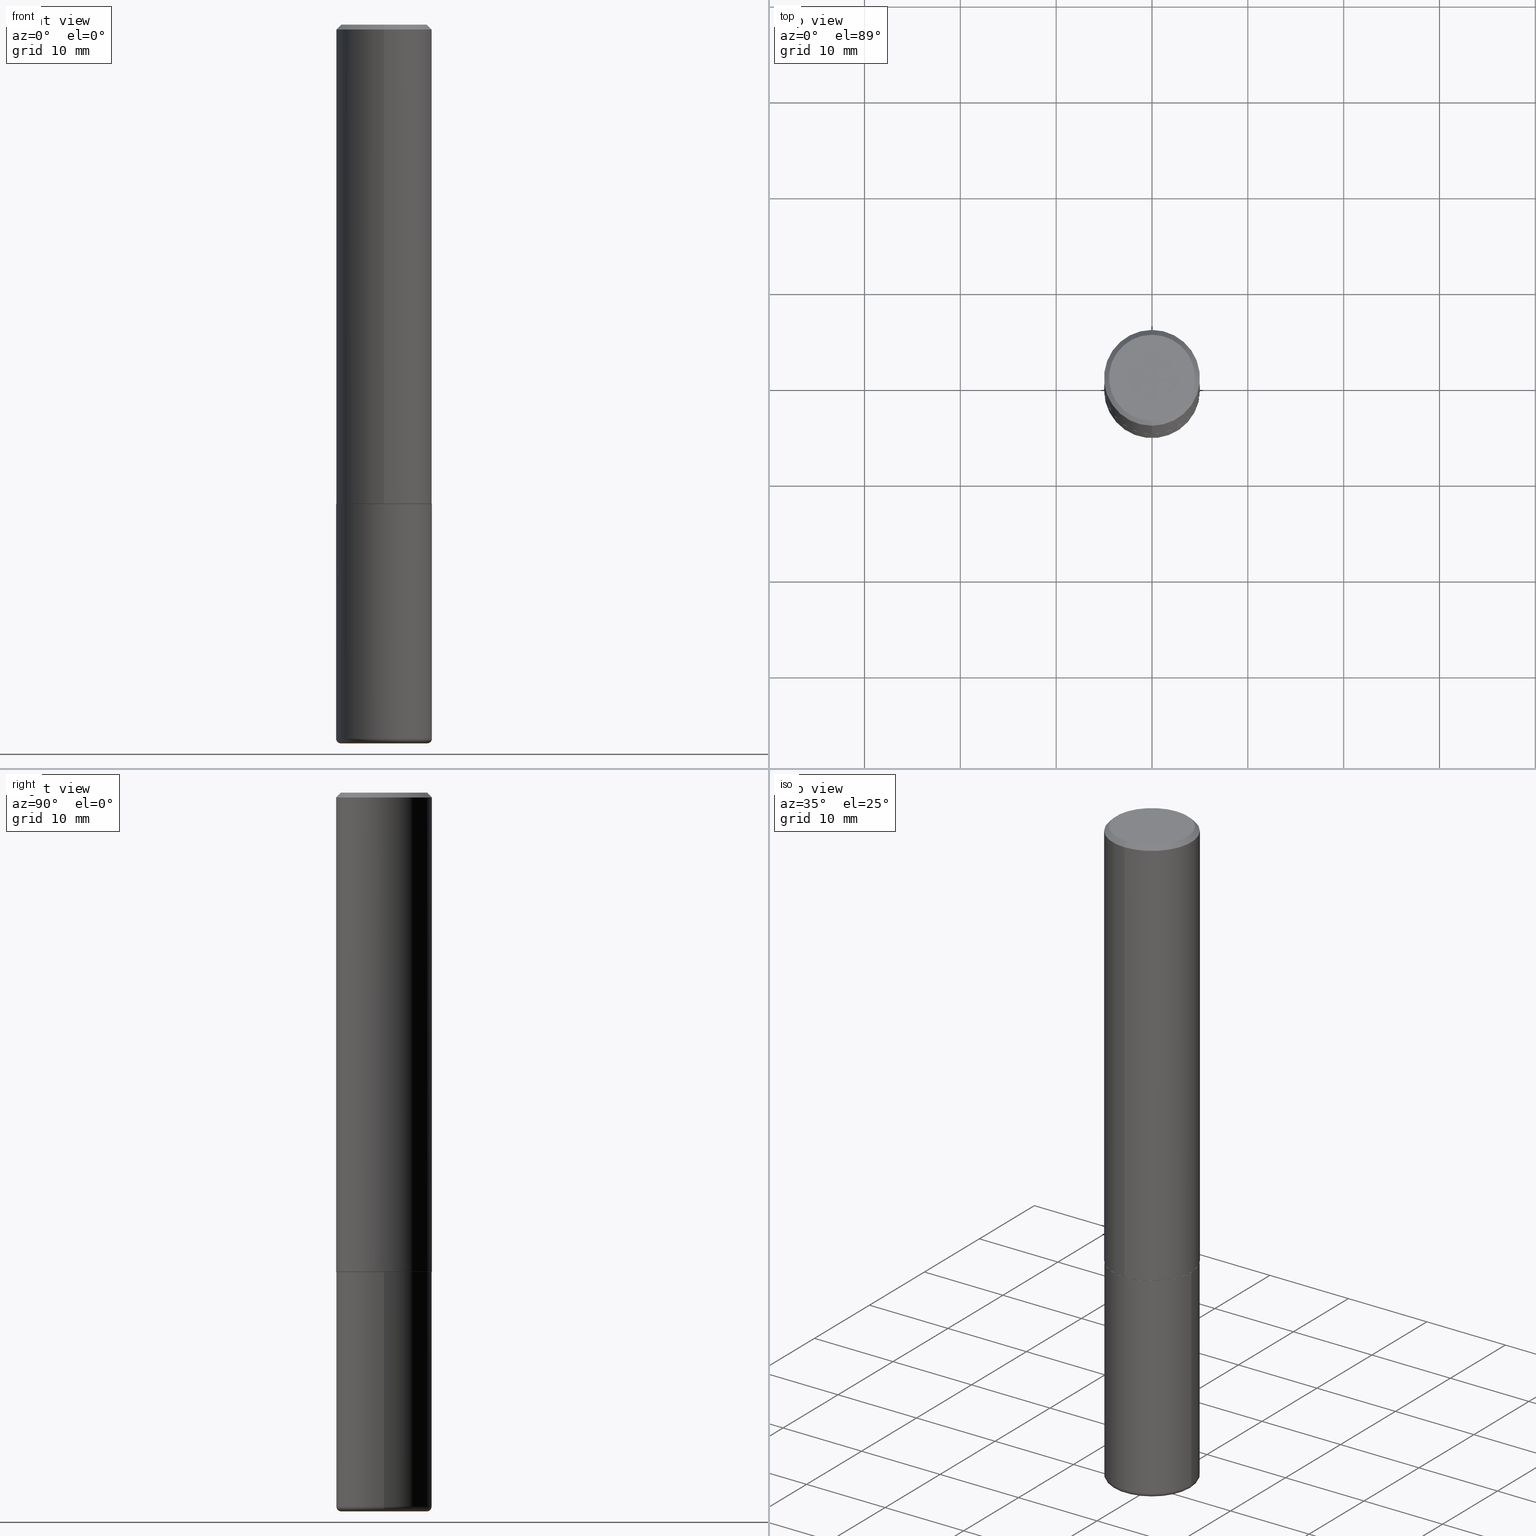
[diagram: canonical four-view strip — front | top / right | iso, engineering-drawing reading convention]
A machine part, canonical four-view strip (front | top / right | iso — engineering-drawing reading convention). The complete STEP part file that produces these views, byte-faithful:
ISO-10303-21;
HEADER;
FILE_DESCRIPTION (( 'STEP AP203' ),
    '1' );
FILE_NAME ('74403.STEP',
    '2024-03-06T15:11:34',
    ( '' ),
    ( '' ),
    'SwSTEP 2.0',
    'SolidWorks 2023',
    '' );
FILE_SCHEMA (( 'CONFIG_CONTROL_DESIGN' ));
ENDSEC;

DATA;
#1 = ORIENTED_EDGE ( 'NONE', *, *, #177, .T. ) ;
#2 = EDGE_CURVE ( 'NONE', #62, #22, #217, .T. ) ;
#3 = PERSON_AND_ORGANIZATION ( #415, #171 ) ;
#4 = LOCAL_TIME ( 10, 11, 34.00000000000000000, #319 ) ;
#5 = DIRECTION ( 'NONE',  ( -6.982962677686265922E-15, -1.000000000000000000, 4.184602492209747448E-15 ) ) ;
#6 = PERSON_AND_ORGANIZATION ( #415, #171 ) ;
#7 = DIRECTION ( 'NONE',  ( -6.982962677686265133E-15, -1.000000000000000000, 3.491137977679279029E-15 ) ) ;
#8 = DATE_AND_TIME ( #37, #182 ) ;
#9 = CARTESIAN_POINT ( 'NONE',  ( 0.000000000000000000, 0.000000000000000000, 0.000000000000000000 ) ) ;
#10 = AXIS2_PLACEMENT_3D ( 'NONE', #286, #34, #356 ) ;
#11 = CIRCLE ( 'NONE', #243, 0.1771500000000000019 ) ;
#12 = CC_DESIGN_PERSON_AND_ORGANIZATION_ASSIGNMENT ( #346, #315, ( #304 ) ) ;
#13 = DIRECTION ( 'NONE',  ( 1.000000000000000000, -6.982962677686272233E-15, 0.000000000000000000 ) ) ;
#14 = DIRECTION ( 'NONE',  ( -6.982962677686265922E-15, -1.000000000000000000, 4.184602492209747448E-15 ) ) ;
#15 = APPLICATION_CONTEXT ( 'configuration controlled 3d designs of mechanical parts and assemblies' ) ;
#16 = CARTESIAN_POINT ( 'NONE',  ( -1.367613240424807079E-15, -0.1958500000000068797, -1.968499999999999028 ) ) ;
#17 = CIRCLE ( 'NONE', #141, 0.1968500000000000250 ) ;
#18 = CARTESIAN_POINT ( 'NONE',  ( -0.1968500000000000250, -7.158219089893024104E-15, -1.968499999999999694 ) ) ;
#19 = LINE ( 'NONE', #75, #338 ) ;
#20 = LINE ( 'NONE', #204, #395 ) ;
#21 = CALENDAR_DATE ( 2024, 6, 3 ) ;
#22 = VERTEX_POINT ( 'NONE', #365 ) ;
#23 = MECHANICAL_CONTEXT ( 'NONE', #264, 'mechanical' ) ;
#24 = EDGE_LOOP ( 'NONE', ( #275, #383, #377, #260 ) ) ;
#25 = DIRECTION ( 'NONE',  ( 0.000000000000000000, 0.000000000000000000, 1.000000000000000000 ) ) ;
#26 = ORIENTED_EDGE ( 'NONE', *, *, #375, .T. ) ;
#27 = FACE_OUTER_BOUND ( 'NONE', #282, .T. ) ;
#28 = CIRCLE ( 'NONE', #121, 0.1968500000000002470 ) ;
#29 = EDGE_LOOP ( 'NONE', ( #340, #55 ) ) ;
#30 = CARTESIAN_POINT ( 'NONE',  ( -1.367613240424807079E-15, -0.1958500000000068797, -1.968499999999999028 ) ) ;
#31 = CONICAL_SURFACE ( 'NONE', #63, 0.1968500000000000527, 0.7853981633974466137 ) ;
#32 = ORIENTED_EDGE ( 'NONE', *, *, #361, .T. ) ;
#33 = DATE_AND_TIME ( #391, #4 ) ;
#34 = DIRECTION ( 'NONE',  ( 2.438088387897960049E-29, -3.491481338843145188E-15, -1.000000000000000000 ) ) ;
#35 = CARTESIAN_POINT ( 'NONE',  ( 7.172804555421624566E-29, -1.024086391496083050E-14, -2.933100000000000041 ) ) ;
#36 = AXIS2_PLACEMENT_3D ( 'NONE', #103, #40, #227 ) ;
#37 = CALENDAR_DATE ( 2024, 6, 3 ) ;
#38 = CARTESIAN_POINT ( 'NONE',  ( 0.1771500000000000019, -1.154667793568816250E-14, -2.952799999999999869 ) ) ;
#39 = CALENDAR_DATE ( 2024, 6, 3 ) ;
#40 = DIRECTION ( 'NONE',  ( -6.982962677686266711E-15, -1.000000000000000000, 3.491481338843145583E-15 ) ) ;
#41 = DIRECTION ( 'NONE',  ( -2.445468806185136597E-29, 3.491481338843145583E-15, 1.000000000000000000 ) ) ;
#42 = AXIS2_PLACEMENT_3D ( 'NONE', #136, #41, #169 ) ;
#43 = VECTOR ( 'NONE', #197, 39.37007874015748854 ) ;
#44 = FACE_OUTER_BOUND ( 'NONE', #278, .T. ) ;
#45 = DIRECTION ( 'NONE',  ( -6.982962677686265922E-15, -1.000000000000000000, 3.491767699944464940E-15 ) ) ;
#46 = DIRECTION ( 'NONE',  ( 4.937700262164538576E-15, 0.7071067811865437980, -0.7071067811865511255 ) ) ;
#47 = AXIS2_PLACEMENT_3D ( 'NONE', #357, #392, #7 ) ;
#48 = CIRCLE ( 'NONE', #212, 0.1958499999999999963 ) ;
#49 = DIRECTION ( 'NONE',  ( 1.000000000000000000, -6.982962677686272233E-15, 0.000000000000000000 ) ) ;
#50 = VECTOR ( 'NONE', #155, 39.37007874015748143 ) ;
#51 = CARTESIAN_POINT ( 'NONE',  ( 4.813511714092851266E-29, -6.873544717340677315E-15, -1.968499999999999694 ) ) ;
#52 = ORIENTED_EDGE ( 'NONE', *, *, #358, .F. ) ;
#53 = ADVANCED_FACE ( 'NONE', ( #294 ), #229, .T. ) ;
#54 = CONICAL_SURFACE ( 'NONE', #101, 0.1958499999999999963, 0.7853981633975336552 ) ;
#55 = ORIENTED_EDGE ( 'NONE', *, *, #215, .F. ) ;
#56 = DIRECTION ( 'NONE',  ( -6.982962677686265922E-15, -1.000000000000000000, 3.491767699944464940E-15 ) ) ;
#57 = EDGE_LOOP ( 'NONE', ( #162, #283, #1, #94 ) ) ;
#58 = EDGE_LOOP ( 'NONE', ( #123, #251, #32, #225 ) ) ;
#59 = ORIENTED_EDGE ( 'NONE', *, *, #114, .F. ) ;
#60 = DIRECTION ( 'NONE',  ( 1.000000000000000000, 0.000000000000000000, 0.000000000000000000 ) ) ;
#61 = CIRCLE ( 'NONE', #353, 0.1968499999999999694 ) ;
#62 = VERTEX_POINT ( 'NONE', #38 ) ;
#63 = AXIS2_PLACEMENT_3D ( 'NONE', #409, #115, #224 ) ;
#64 = CARTESIAN_POINT ( 'NONE',  ( 7.220980290903470182E-29, -1.030964609733603853E-14, -2.952799999999999869 ) ) ;
#65 = APPROVAL_STATUS ( 'not_yet_approved' ) ;
#66 = CARTESIAN_POINT ( 'NONE',  ( 1.234936949548815012E-15, 0.1768499999999998407, -5.065124715121833152E-16 ) ) ;
#67 = PLANE ( 'NONE',  #274 ) ;
#68 = CIRCLE ( 'NONE', #413, 0.1771500000000000019 ) ;
#69 = EDGE_CURVE ( 'NONE', #86, #308, #112, .T. ) ;
#70 = COORDINATED_UNIVERSAL_TIME_OFFSET ( 5, 0, .BEHIND. ) ;
#71 = ADVANCED_FACE ( 'NONE', ( #135 ), #95, .T. ) ;
#72 = FACE_OUTER_BOUND ( 'NONE', #24, .T. ) ;
#73 = CARTESIAN_POINT ( 'NONE',  ( 1.304766576325678705E-15, 0.1768499999999998407, -3.955058252891884244E-16 ) ) ;
#74 = CARTESIAN_POINT ( 'NONE',  ( 4.813905344975440714E-29, -6.872981015512730918E-15, -1.968499999999999694 ) ) ;
#75 = CARTESIAN_POINT ( 'NONE',  ( 0.1968499999999999694, -1.374596203102541411E-15, 9.598753983154298056E-30 ) ) ;
#76 = CARTESIAN_POINT ( 'NONE',  ( 4.813511714092851266E-29, -6.873544717340677315E-15, -1.968499999999999694 ) ) ;
#77 = DIRECTION ( 'NONE',  ( -6.982962677686265133E-15, -1.000000000000000000, 3.491137977679279029E-15 ) ) ;
#78 = AXIS2_PLACEMENT_3D ( 'NONE', #207, #335, #299 ) ;
#79 = CARTESIAN_POINT ( 'NONE',  ( -1.350489030861325626E-15, -0.1968500000000001082, -0.01999999999999935510 ) ) ;
#80 = APPLICATION_PROTOCOL_DEFINITION ( 'international standard', 'config_control_design', 1994, #15 ) ;
#81 = ADVANCED_FACE ( 'NONE', ( #97 ), #120, .T. ) ;
#82 = ORIENTED_EDGE ( 'NONE', *, *, #116, .F. ) ;
#83 = ADVANCED_FACE ( 'NONE', ( #72 ), #296, .T. ) ;
#84 = PRODUCT_DEFINITION_SHAPE ( 'NONE', 'NONE',  #303 ) ;
#85 = APPROVAL_DATE_TIME ( #279, #261 ) ;
#86 = VERTEX_POINT ( 'NONE', #396 ) ;
#87 = PRODUCT_DEFINITION_FORMATION_WITH_SPECIFIED_SOURCE ( 'ANY', '', #304, .NOT_KNOWN. ) ;
#88 = FACE_OUTER_BOUND ( 'NONE', #284, .T. ) ;
#89 = VERTEX_POINT ( 'NONE', #73 ) ;
#90 = ADVANCED_FACE ( 'NONE', ( #231 ), #67, .F. ) ;
#91 = ORIENTED_EDGE ( 'NONE', *, *, #69, .F. ) ;
#92 = AXIS2_PLACEMENT_3D ( 'NONE', #371, #240, #77 ) ;
#93 = APPROVAL ( #65, 'UNSPECIFIED' ) ;
#94 = ORIENTED_EDGE ( 'NONE', *, *, #110, .T. ) ;
#95 = CYLINDRICAL_SURFACE ( 'NONE', #42, 0.1968499999999999694 ) ;
#96 = TOROIDAL_SURFACE ( 'NONE', #330, 0.1771500000000000019, 0.01969999999999987733 ) ;
#97 = FACE_OUTER_BOUND ( 'NONE', #219, .T. ) ;
#98 = DATE_TIME_ROLE ( 'classification_date' ) ;
#99 = DIRECTION ( 'NONE',  ( 1.000000000000000000, -6.982962677686271444E-15, 4.883557194083114022E-29 ) ) ;
#100 = AXIS2_PLACEMENT_3D ( 'NONE', #257, #131, #5 ) ;
#101 = AXIS2_PLACEMENT_3D ( 'NONE', #416, #384, #244 ) ;
#102 = COORDINATED_UNIVERSAL_TIME_OFFSET ( 5, 0, .BEHIND. ) ;
#103 = CARTESIAN_POINT ( 'NONE',  ( 0.1771500000000000019, -1.147789575331295131E-14, -2.933100000000000041 ) ) ;
#104 = CARTESIAN_POINT ( 'NONE',  ( 4.813511714092851266E-29, -6.873544717340677315E-15, -1.968499999999999694 ) ) ;
#105 = DIRECTION ( 'NONE',  ( -6.982962677686265922E-15, -1.000000000000000000, 4.163344669033670112E-15 ) ) ;
#106 = CC_DESIGN_DATE_AND_TIME_ASSIGNMENT ( #255, #291, ( #303 ) ) ;
#107 = CC_DESIGN_SECURITY_CLASSIFICATION ( #202, ( #87 ) ) ;
#108 = CYLINDRICAL_SURFACE ( 'NONE', #78, 0.1968500000000001360 ) ;
#109 = CARTESIAN_POINT ( 'NONE',  ( -1.374596203102495065E-15, -0.1968500000000071026, -1.967499999999998916 ) ) ;
#110 = EDGE_CURVE ( 'NONE', #363, #180, #232, .T. ) ;
#111 = DIRECTION ( 'NONE',  ( 5.024295867788490741E-15, 0.7071067811866103003, 0.7071067811864847341 ) ) ;
#112 = CIRCLE ( 'NONE', #321, 0.1968500000000000250 ) ;
#113 = CIRCLE ( 'NONE', #332, 0.01969999999999989468 ) ;
#114 = EDGE_CURVE ( 'NONE', #348, #62, #68, .T. ) ;
#115 = DIRECTION ( 'NONE',  ( 2.445268841296851437E-29, -3.491767699944464545E-15, -1.000000000000000000 ) ) ;
#116 = EDGE_CURVE ( 'NONE', #117, #22, #61, .T. ) ;
#117 = VERTEX_POINT ( 'NONE', #164 ) ;
#118 = CARTESIAN_POINT ( 'NONE',  ( -0.1968499999999999694, 1.398703375343756999E-15, -9.682923725166782276E-30 ) ) ;
#119 = ORIENTED_EDGE ( 'NONE', *, *, #144, .T. ) ;
#120 = TOROIDAL_SURFACE ( 'NONE', #210, 0.1771500000000000019, 0.01969999999999987733 ) ;
#121 = AXIS2_PLACEMENT_3D ( 'NONE', #290, #265, #292 ) ;
#122 = CARTESIAN_POINT ( 'NONE',  ( 0.000000000000000000, 0.000000000000000000, 0.000000000000000000 ) ) ;
#123 = ORIENTED_EDGE ( 'NONE', *, *, #206, .F. ) ;
#124 =( NAMED_UNIT ( * ) PLANE_ANGLE_UNIT ( ) SI_UNIT ( $, .RADIAN. ) );
#125 = ORIENTED_EDGE ( 'NONE', *, *, #206, .T. ) ;
#126 = CC_DESIGN_PERSON_AND_ORGANIZATION_ASSIGNMENT ( #6, #285, ( #87 ) ) ;
#127 = ORIENTED_EDGE ( 'NONE', *, *, #69, .T. ) ;
#128 = DIRECTION ( 'NONE',  ( 2.445268841296850876E-29, -3.491767699944464940E-15, -1.000000000000000000 ) ) ;
#129 = AXIS2_PLACEMENT_3D ( 'NONE', #250, #161, #56 ) ;
#130 = EDGE_CURVE ( 'NONE', #348, #117, #113, .T. ) ;
#131 = DIRECTION ( 'NONE',  ( -2.445268841296851437E-29, 3.491767699944464545E-15, 1.000000000000000000 ) ) ;
#132 = PERSON_AND_ORGANIZATION ( #415, #171 ) ;
#133 = DIRECTION ( 'NONE',  ( -2.445468806185136597E-29, 3.491481338843145583E-15, 1.000000000000000000 ) ) ;
#134 = SHAPE_DEFINITION_REPRESENTATION ( #84, #266 ) ;
#135 = FACE_OUTER_BOUND ( 'NONE', #410, .T. ) ;
#136 = CARTESIAN_POINT ( 'NONE',  ( 0.000000000000000000, 0.000000000000000000, 0.000000000000000000 ) ) ;
#137 = DESIGN_CONTEXT ( 'detailed design', #15, 'design' ) ;
#138 = EDGE_CURVE ( 'NONE', #22, #117, #170, .T. ) ;
#139 = CARTESIAN_POINT ( 'NONE',  ( 4.890537682593712927E-31, -6.983535399888942699E-17, -0.02000000000000004205 ) ) ;
#140 = DIRECTION ( 'NONE',  ( -2.445268841296851437E-29, 3.491767699944464545E-15, 1.000000000000000000 ) ) ;
#141 = AXIS2_PLACEMENT_3D ( 'NONE', #74, #268, #341 ) ;
#142 = CC_DESIGN_APPROVAL ( #269, ( #87 ) ) ;
#143 = LINE ( 'NONE', #402, #249 ) ;
#144 = EDGE_CURVE ( 'NONE', #188, #414, #28, .T. ) ;
#145 = EDGE_CURVE ( 'NONE', #156, #180, #318, .T. ) ;
#146 = FACE_OUTER_BOUND ( 'NONE', #254, .T. ) ;
#147 = EDGE_CURVE ( 'NONE', #186, #216, #276, .T. ) ;
#148 = DIRECTION ( 'NONE',  ( -1.000000000000000000, 6.982962677686265922E-15, -4.876176775795935793E-29 ) ) ;
#149 = AXIS2_PLACEMENT_3D ( 'NONE', #104, #174, #214 ) ;
#150 = CC_DESIGN_APPROVAL ( #261, ( #303 ) ) ;
#151 = FACE_OUTER_BOUND ( 'NONE', #58, .T. ) ;
#152 = ORIENTED_EDGE ( 'NONE', *, *, #138, .F. ) ;
#153 = UNCERTAINTY_MEASURE_WITH_UNIT (LENGTH_MEASURE( 1.000000000000000082E-05 ), #349, 'distance_accuracy_value', 'NONE');
#154 = EDGE_CURVE ( 'NONE', #414, #188, #158, .T. ) ;
#155 = DIRECTION ( 'NONE',  ( -4.937700262164969294E-15, -0.7071067811866054154, 0.7071067811864896191 ) ) ;
#156 = VERTEX_POINT ( 'NONE', #267 ) ;
#157 = ORIENTED_EDGE ( 'NONE', *, *, #200, .F. ) ;
#158 = CIRCLE ( 'NONE', #300, 0.1968500000000002470 ) ;
#159 = DIRECTION ( 'NONE',  ( -2.445468806185136877E-29, 3.491481338843145188E-15, 1.000000000000000000 ) ) ;
#160 = ORIENTED_EDGE ( 'NONE', *, *, #2, .T. ) ;
#161 = DIRECTION ( 'NONE',  ( -2.445268841296851437E-29, 3.491767699944464545E-15, 1.000000000000000000 ) ) ;
#162 = ORIENTED_EDGE ( 'NONE', *, *, #145, .F. ) ;
#163 = DIRECTION ( 'NONE',  ( 6.982962677686265922E-15, 1.000000000000000000, -3.491767699944464940E-15 ) ) ;
#164 = CARTESIAN_POINT ( 'NONE',  ( -0.1968499999999999417, -8.842160539617071922E-15, -2.933100000000000041 ) ) ;
#165 = APPROVAL_DATE_TIME ( #33, #93 ) ;
#166 = DIRECTION ( 'NONE',  ( -2.445468806185136597E-29, 3.491481338843145583E-15, 1.000000000000000000 ) ) ;
#167 = DATE_AND_TIME ( #327, #368 ) ;
#168 = CARTESIAN_POINT ( 'NONE',  ( 7.172804555421624566E-29, -1.024086391496083050E-14, -2.933100000000000041 ) ) ;
#169 = DIRECTION ( 'NONE',  ( 1.000000000000000000, -6.982962677686266711E-15, 4.876176775795935793E-29 ) ) ;
#170 = CIRCLE ( 'NONE', #233, 0.1968499999999999694 ) ;
#171 = ORGANIZATION ( 'UNSPECIFIED', 'UNSPECIFIED', '' ) ;
#172 = CC_DESIGN_DATE_AND_TIME_ASSIGNMENT ( #8, #98, ( #202 ) ) ;
#173 = AXIS2_PLACEMENT_3D ( 'NONE', #122, #25, #60 ) ;
#174 = DIRECTION ( 'NONE',  ( -2.445268841296850876E-29, 3.491767699944464940E-15, 1.000000000000000000 ) ) ;
#175 = CARTESIAN_POINT ( 'NONE',  ( 1.395150661665005404E-15, 0.1958499999999931407, -1.968500000000000583 ) ) ;
#176 = CARTESIAN_POINT ( 'NONE',  ( 0.000000000000000000, 0.000000000000000000, 0.000000000000000000 ) ) ;
#177 = EDGE_CURVE ( 'NONE', #89, #363, #238, .T. ) ;
#178 = DIRECTION ( 'NONE',  ( 2.438088387897960049E-29, -3.491481338843145188E-15, -1.000000000000000000 ) ) ;
#179 = CARTESIAN_POINT ( 'NONE',  ( -0.1771500000000000019, -8.946540090277048352E-15, -2.952799999999999869 ) ) ;
#180 = VERTEX_POINT ( 'NONE', #79 ) ;
#181 = EDGE_CURVE ( 'NONE', #156, #89, #226, .T. ) ;
#182 = LOCAL_TIME ( 10, 11, 34.00000000000000000, #70 ) ;
#183 = COORDINATED_UNIVERSAL_TIME_OFFSET ( 5, 0, .BEHIND. ) ;
#184 = ORIENTED_EDGE ( 'NONE', *, *, #323, .F. ) ;
#185 = APPLICATION_PROTOCOL_DEFINITION ( 'international standard', 'config_control_design', 1994, #264 ) ;
#186 = VERTEX_POINT ( 'NONE', #16 ) ;
#187 = CC_DESIGN_PERSON_AND_ORGANIZATION_ASSIGNMENT ( #317, #191, ( #303 ) ) ;
#188 = VERTEX_POINT ( 'NONE', #109 ) ;
#189 = CONICAL_SURFACE ( 'NONE', #322, 0.1968500000000000527, 0.7853981633974466137 ) ;
#190 = ORIENTED_EDGE ( 'NONE', *, *, #192, .T. ) ;
#191 = PERSON_AND_ORGANIZATION_ROLE ( 'creator' ) ;
#192 = EDGE_CURVE ( 'NONE', #180, #363, #362, .T. ) ;
#193 = DIRECTION ( 'NONE',  ( 1.000000000000000000, -6.982962677686269866E-15, 0.000000000000000000 ) ) ;
#194 = ADVANCED_FACE ( 'NONE', ( #367 ), #333, .F. ) ;
#195 = CARTESIAN_POINT ( 'NONE',  ( -0.1771500000000000019, -8.982137458561812020E-15, -2.933100000000000041 ) ) ;
#196 = MANIFOLD_SOLID_BREP ( 'Body-Move/Copy2[1]', #400 ) ;
#197 = DIRECTION ( 'NONE',  ( -4.851104656540954809E-15, -0.7071067811865486830, -0.7071067811865462405 ) ) ;
#198 = DIRECTION ( 'NONE',  ( -1.000000000000000000, 7.105427357600965571E-15, 0.000000000000000000 ) ) ;
#199 = DIRECTION ( 'NONE',  ( -2.445468806185136597E-29, 3.491481338843145583E-15, 1.000000000000000000 ) ) ;
#200 = EDGE_CURVE ( 'NONE', #22, #86, #19, .T. ) ;
#201 = DIRECTION ( 'NONE',  ( -6.982962677686265922E-15, -1.000000000000000000, 3.491767699944464545E-15 ) ) ;
#202 = SECURITY_CLASSIFICATION ( '', '', #293 ) ;
#203 = VECTOR ( 'NONE', #159, 39.37007874015748143 ) ;
#204 = CARTESIAN_POINT ( 'NONE',  ( 1.391597947986204111E-15, 0.1958499999999931407, -1.968500000000000583 ) ) ;
#205 = ORIENTED_EDGE ( 'NONE', *, *, #358, .T. ) ;
#206 = EDGE_CURVE ( 'NONE', #216, #414, #20, .T. ) ;
#207 = CARTESIAN_POINT ( 'NONE',  ( 0.000000000000000000, 0.000000000000000000, 0.000000000000000000 ) ) ;
#208 = ADVANCED_FACE ( 'NONE', ( #237 ), #189, .T. ) ;
#209 = DIRECTION ( 'NONE',  ( -2.445268841296851437E-29, 3.491767699944464545E-15, 1.000000000000000000 ) ) ;
#210 = AXIS2_PLACEMENT_3D ( 'NONE', #168, #234, #99 ) ;
#211 = ORIENTED_EDGE ( 'NONE', *, *, #130, .T. ) ;
#212 = AXIS2_PLACEMENT_3D ( 'NONE', #76, #140, #14 ) ;
#213 = ADVANCED_FACE ( 'NONE', ( #146 ), #271, .F. ) ;
#214 = DIRECTION ( 'NONE',  ( -6.982962677686265922E-15, -1.000000000000000000, 3.491767699944464940E-15 ) ) ;
#215 = EDGE_CURVE ( 'NONE', #216, #186, #48, .T. ) ;
#216 = VERTEX_POINT ( 'NONE', #175 ) ;
#217 = CIRCLE ( 'NONE', #36, 0.01969999999999989468 ) ;
#218 = LINE ( 'NONE', #118, #203 ) ;
#219 = EDGE_LOOP ( 'NONE', ( #336, #385, #160, #82 ) ) ;
#220 = ADVANCED_FACE ( 'NONE', ( #44 ), #108, .T. ) ;
#221 = DIRECTION ( 'NONE',  ( -2.445468806185136597E-29, 3.491481338843145583E-15, 1.000000000000000000 ) ) ;
#222 = ORIENTED_EDGE ( 'NONE', *, *, #181, .T. ) ;
#223 = EDGE_CURVE ( 'NONE', #308, #86, #17, .T. ) ;
#224 = DIRECTION ( 'NONE',  ( 6.982962677686265133E-15, 1.000000000000000000, -3.491137977679279029E-15 ) ) ;
#225 = ORIENTED_EDGE ( 'NONE', *, *, #154, .F. ) ;
#226 = CIRCLE ( 'NONE', #262, 0.1768499999999998407 ) ;
#227 = DIRECTION ( 'NONE',  ( 1.000000000000000000, -6.982962677686266711E-15, 0.000000000000000000 ) ) ;
#228 = PERSON_AND_ORGANIZATION_ROLE ( 'creator' ) ;
#229 = PLANE ( 'NONE',  #10 ) ;
#230 = CC_DESIGN_PERSON_AND_ORGANIZATION_ASSIGNMENT ( #3, #355, ( #202 ) ) ;
#231 = FACE_OUTER_BOUND ( 'NONE', #270, .T. ) ;
#232 = CIRCLE ( 'NONE', #47, 0.1968500000000000527 ) ;
#233 = AXIS2_PLACEMENT_3D ( 'NONE', #35, #133, #328 ) ;
#234 = DIRECTION ( 'NONE',  ( -2.445468806185136597E-29, 3.491481338843145583E-15, 1.000000000000000000 ) ) ;
#235 = APPROVAL_ROLE ( '' ) ;
#236 = CARTESIAN_POINT ( 'NONE',  ( 7.172804555421624566E-29, -1.024086391496083050E-14, -2.933100000000000041 ) ) ;
#237 = FACE_OUTER_BOUND ( 'NONE', #57, .T. ) ;
#238 = LINE ( 'NONE', #366, #405 ) ;
#239 = CC_DESIGN_APPROVAL ( #93, ( #202 ) ) ;
#240 = DIRECTION ( 'NONE',  ( -2.445268841296851437E-29, 3.491767699944464545E-15, 1.000000000000000000 ) ) ;
#241 = FACE_OUTER_BOUND ( 'NONE', #313, .T. ) ;
#242 = DIRECTION ( 'NONE',  ( 6.982962677686265133E-15, 1.000000000000000000, -3.491137977679279029E-15 ) ) ;
#243 = AXIS2_PLACEMENT_3D ( 'NONE', #306, #273, #49 ) ;
#244 = DIRECTION ( 'NONE',  ( -6.982962677686265922E-15, -1.000000000000000000, 4.184602492209747448E-15 ) ) ;
#245 = CARTESIAN_POINT ( 'NONE',  ( 7.172804555421624566E-29, -1.024086391496083050E-14, -2.933100000000000041 ) ) ;
#246 = ORIENTED_EDGE ( 'NONE', *, *, #192, .F. ) ;
#247 = DIRECTION ( 'NONE',  ( 1.000000000000000000, -6.982962677686271444E-15, 4.883557194083114022E-29 ) ) ;
#248 = ORIENTED_EDGE ( 'NONE', *, *, #181, .F. ) ;
#249 = VECTOR ( 'NONE', #373, 39.37007874015748143 ) ;
#250 = CARTESIAN_POINT ( 'NONE',  ( -5.428821863719041386E-45, 7.752188435212310874E-31, 2.220132924459896583E-16 ) ) ;
#251 = ORIENTED_EDGE ( 'NONE', *, *, #215, .T. ) ;
#252 = CARTESIAN_POINT ( 'NONE',  ( 1.398703375343782440E-15, 0.1968499999999933914, -1.967500000000000471 ) ) ;
#253 = ORIENTED_EDGE ( 'NONE', *, *, #177, .F. ) ;
#254 = EDGE_LOOP ( 'NONE', ( #127, #386 ) ) ;
#255 = DATE_AND_TIME ( #39, #387 ) ;
#256 = CC_DESIGN_PERSON_AND_ORGANIZATION_ASSIGNMENT ( #393, #228, ( #87 ) ) ;
#257 = CARTESIAN_POINT ( 'NONE',  ( 4.813511714092851266E-29, -6.873544717340677315E-15, -1.968499999999999694 ) ) ;
#258 = CARTESIAN_POINT ( 'NONE',  ( 4.811066445251554069E-29, -6.870052949640732965E-15, -1.967499999999999805 ) ) ;
#259 = COORDINATED_UNIVERSAL_TIME_OFFSET ( 5, 0, .BEHIND. ) ;
#260 = ORIENTED_EDGE ( 'NONE', *, *, #223, .F. ) ;
#261 = APPROVAL ( #310, 'UNSPECIFIED' ) ;
#262 = AXIS2_PLACEMENT_3D ( 'NONE', #302, #272, #45 ) ;
#263 = CARTESIAN_POINT ( 'NONE',  ( 4.813905344975440714E-29, -6.872981015512730918E-15, -1.968499999999999694 ) ) ;
#264 = APPLICATION_CONTEXT ( 'configuration controlled 3d designs of mechanical parts and assemblies' ) ;
#265 = DIRECTION ( 'NONE',  ( -2.445268841296851437E-29, 3.491767699944464545E-15, 1.000000000000000000 ) ) ;
#266 = ADVANCED_BREP_SHAPE_REPRESENTATION ( '74403', ( #196, #331, #173 ), #354 ) ;
#267 = CARTESIAN_POINT ( 'NONE',  ( -1.281884050883609900E-15, -0.1768499999999998407, 8.395324101811677409E-16 ) ) ;
#268 = DIRECTION ( 'NONE',  ( -2.445468806185136597E-29, 3.491481338843145583E-15, 1.000000000000000000 ) ) ;
#269 = APPROVAL ( #288, 'UNSPECIFIED' ) ;
#270 = EDGE_LOOP ( 'NONE', ( #26, #222 ) ) ;
#271 = PLANE ( 'NONE',  #295 ) ;
#272 = DIRECTION ( 'NONE',  ( -2.445268841296851437E-29, 3.491767699944464545E-15, 1.000000000000000000 ) ) ;
#273 = DIRECTION ( 'NONE',  ( -2.445468806185136597E-29, 3.491481338843145583E-15, 1.000000000000000000 ) ) ;
#274 = AXIS2_PLACEMENT_3D ( 'NONE', #66, #128, #163 ) ;
#275 = ORIENTED_EDGE ( 'NONE', *, *, #404, .F. ) ;
#276 = CIRCLE ( 'NONE', #100, 0.1958499999999999963 ) ;
#277 = LINE ( 'NONE', #30, #50 ) ;
#278 = EDGE_LOOP ( 'NONE', ( #119, #347, #246, #316 ) ) ;
#279 = DATE_AND_TIME ( #21, #325 ) ;
#280 = ORIENTED_EDGE ( 'NONE', *, *, #145, .T. ) ;
#281 = APPROVAL_ROLE ( '' ) ;
#282 = EDGE_LOOP ( 'NONE', ( #248, #280, #190, #253 ) ) ;
#283 = ORIENTED_EDGE ( 'NONE', *, *, #375, .F. ) ;
#284 = EDGE_LOOP ( 'NONE', ( #205, #211, #152, #309 ) ) ;
#285 = PERSON_AND_ORGANIZATION_ROLE ( 'design_supplier' ) ;
#286 = CARTESIAN_POINT ( 'NONE',  ( 7.220980290903470182E-29, -1.030964609733603853E-14, -2.952799999999999869 ) ) ;
#287 = CLOSED_SHELL ( 'NONE', ( #344, #220, #370, #208, #305, #378, #194, #90 ) ) ;
#288 = APPROVAL_STATUS ( 'not_yet_approved' ) ;
#289 = APPROVAL_PERSON_ORGANIZATION ( #132, #269, #235 ) ;
#290 = CARTESIAN_POINT ( 'NONE',  ( 4.811066445251554069E-29, -6.870052949640732965E-15, -1.967499999999999805 ) ) ;
#291 = DATE_TIME_ROLE ( 'creation_date' ) ;
#292 = DIRECTION ( 'NONE',  ( -6.982962677686265922E-15, -1.000000000000000000, 4.163344669033670112E-15 ) ) ;
#293 = SECURITY_CLASSIFICATION_LEVEL ( 'unclassified' ) ;
#294 = FACE_OUTER_BOUND ( 'NONE', #311, .T. ) ;
#295 = AXIS2_PLACEMENT_3D ( 'NONE', #403, #178, #148 ) ;
#296 = CYLINDRICAL_SURFACE ( 'NONE', #360, 0.1968499999999999694 ) ;
#297 = DIRECTION ( 'NONE',  ( 2.445268841296851437E-29, -3.491767699944464545E-15, -1.000000000000000000 ) ) ;
#298 = PRODUCT_RELATED_PRODUCT_CATEGORY ( 'detail', '', ( #304 ) ) ;
#299 = DIRECTION ( 'NONE',  ( -6.982962677686265922E-15, -1.000000000000000000, 3.491767699944464545E-15 ) ) ;
#300 = AXIS2_PLACEMENT_3D ( 'NONE', #258, #399, #105 ) ;
#301 = DIRECTION ( 'NONE',  ( -2.445268841296851437E-29, 3.491767699944464545E-15, 1.000000000000000000 ) ) ;
#302 = CARTESIAN_POINT ( 'NONE',  ( -5.428821863719041386E-45, 7.752188435212310874E-31, 2.220132924459896583E-16 ) ) ;
#303 = PRODUCT_DEFINITION ( 'UNKNOWN', '', #87, #137 ) ;
#304 = PRODUCT ( '74403', '74403', '', ( #23 ) ) ;
#305 = ADVANCED_FACE ( 'NONE', ( #401 ), #337, .T. ) ;
#306 = CARTESIAN_POINT ( 'NONE',  ( 7.220980290903470182E-29, -1.030964609733603853E-14, -2.952799999999999869 ) ) ;
#307 = PERSON_AND_ORGANIZATION ( #415, #171 ) ;
#308 = VERTEX_POINT ( 'NONE', #18 ) ;
#309 = ORIENTED_EDGE ( 'NONE', *, *, #2, .F. ) ;
#310 = APPROVAL_STATUS ( 'not_yet_approved' ) ;
#311 = EDGE_LOOP ( 'NONE', ( #52, #59 ) ) ;
#312 = CARTESIAN_POINT ( 'NONE',  ( 1.374596203102542200E-15, 0.1968499999999999694, -0.02000000000000072900 ) ) ;
#313 = EDGE_LOOP ( 'NONE', ( #407, #125, #342, #352 ) ) ;
#314 = CONICAL_SURFACE ( 'NONE', #372, 0.1958499999999999963, 0.7853981633975336552 ) ;
#315 = PERSON_AND_ORGANIZATION_ROLE ( 'design_owner' ) ;
#316 = ORIENTED_EDGE ( 'NONE', *, *, #390, .F. ) ;
#317 = PERSON_AND_ORGANIZATION ( #415, #171 ) ;
#318 = LINE ( 'NONE', #329, #43 ) ;
#319 = COORDINATED_UNIVERSAL_TIME_OFFSET ( 5, 0, .BEHIND. ) ;
#320 = DIRECTION ( 'NONE',  ( -2.445468806185136597E-29, 3.491481338843145583E-15, 1.000000000000000000 ) ) ;
#321 = AXIS2_PLACEMENT_3D ( 'NONE', #263, #389, #397 ) ;
#322 = AXIS2_PLACEMENT_3D ( 'NONE', #139, #297, #242 ) ;
#323 = EDGE_CURVE ( 'NONE', #414, #363, #143, .T. ) ;
#324 = APPROVAL_DATE_TIME ( #167, #269 ) ;
#325 = LOCAL_TIME ( 10, 11, 34.00000000000000000, #183 ) ;
#326 = ORIENTED_EDGE ( 'NONE', *, *, #390, .T. ) ;
#327 = CALENDAR_DATE ( 2024, 6, 3 ) ;
#328 = DIRECTION ( 'NONE',  ( 1.000000000000000000, -6.982962677686269866E-15, 0.000000000000000000 ) ) ;
#329 = CARTESIAN_POINT ( 'NONE',  ( -1.350489030861325626E-15, -0.1968500000000001082, -0.01999999999999935510 ) ) ;
#330 = AXIS2_PLACEMENT_3D ( 'NONE', #245, #221, #247 ) ;
#331 = MANIFOLD_SOLID_BREP ( 'Body-Move/Copy2[2]', #287 ) ;
#332 = AXIS2_PLACEMENT_3D ( 'NONE', #195, #359, #198 ) ;
#333 = PLANE ( 'NONE',  #149 ) ;
#334 = APPROVAL_PERSON_ORGANIZATION ( #307, #261, #281 ) ;
#335 = DIRECTION ( 'NONE',  ( -2.445268841296851437E-29, 3.491767699944464545E-15, 1.000000000000000000 ) ) ;
#336 = ORIENTED_EDGE ( 'NONE', *, *, #130, .F. ) ;
#337 = CYLINDRICAL_SURFACE ( 'NONE', #379, 0.1968500000000001360 ) ;
#338 = VECTOR ( 'NONE', #369, 39.37007874015748143 ) ;
#339 = DIRECTION ( 'NONE',  ( -6.982962677686265922E-15, -1.000000000000000000, 4.184602492209747448E-15 ) ) ;
#340 = ORIENTED_EDGE ( 'NONE', *, *, #147, .F. ) ;
#341 = DIRECTION ( 'NONE',  ( 1.000000000000000000, -6.982962677686267499E-15, 0.000000000000000000 ) ) ;
#342 = ORIENTED_EDGE ( 'NONE', *, *, #144, .F. ) ;
#343 = LENGTH_MEASURE_WITH_UNIT ( LENGTH_MEASURE( 0.02539999999999999897 ), #376 );
#344 = ADVANCED_FACE ( 'NONE', ( #241 ), #314, .T. ) ;
#345 = ORIENTED_EDGE ( 'NONE', *, *, #154, .T. ) ;
#346 = PERSON_AND_ORGANIZATION ( #415, #171 ) ;
#347 = ORIENTED_EDGE ( 'NONE', *, *, #323, .T. ) ;
#348 = VERTEX_POINT ( 'NONE', #179 ) ;
#349 =( CONVERSION_BASED_UNIT ( 'INCH', #343 ) LENGTH_UNIT ( ) NAMED_UNIT ( #398 ) );
#350 = ORIENTED_EDGE ( 'NONE', *, *, #138, .T. ) ;
#351 =( NAMED_UNIT ( * ) SI_UNIT ( $, .STERADIAN. ) SOLID_ANGLE_UNIT ( ) );
#352 = ORIENTED_EDGE ( 'NONE', *, *, #361, .F. ) ;
#353 = AXIS2_PLACEMENT_3D ( 'NONE', #236, #199, #193 ) ;
#354 =( GEOMETRIC_REPRESENTATION_CONTEXT ( 3 ) GLOBAL_UNCERTAINTY_ASSIGNED_CONTEXT ( ( #153 ) ) GLOBAL_UNIT_ASSIGNED_CONTEXT ( ( #349, #124, #351 ) ) REPRESENTATION_CONTEXT ( 'NONE', 'WORKASPACE' ) );
#355 = PERSON_AND_ORGANIZATION_ROLE ( 'classification_officer' ) ;
#356 = DIRECTION ( 'NONE',  ( -1.000000000000000000, 6.982962677686265922E-15, -4.876176775795935793E-29 ) ) ;
#357 = CARTESIAN_POINT ( 'NONE',  ( 4.890537682593712927E-31, -6.983535399888942699E-17, -0.02000000000000004205 ) ) ;
#358 = EDGE_CURVE ( 'NONE', #62, #348, #11, .T. ) ;
#359 = DIRECTION ( 'NONE',  ( 7.105427357601001859E-15, 1.000000000000000000, -3.491481338843145583E-15 ) ) ;
#360 = AXIS2_PLACEMENT_3D ( 'NONE', #9, #320, #394 ) ;
#361 = EDGE_CURVE ( 'NONE', #186, #188, #277, .T. ) ;
#362 = CIRCLE ( 'NONE', #92, 0.1968500000000000527 ) ;
#363 = VERTEX_POINT ( 'NONE', #312 ) ;
#364 = PERSON_AND_ORGANIZATION ( #415, #171 ) ;
#365 = CARTESIAN_POINT ( 'NONE',  ( 0.1968499999999999417, -1.161546011806337053E-14, -2.933100000000000041 ) ) ;
#366 = CARTESIAN_POINT ( 'NONE',  ( 1.374596203102542200E-15, 0.1968499999999999694, -0.02000000000000072900 ) ) ;
#367 = FACE_OUTER_BOUND ( 'NONE', #29, .T. ) ;
#368 = LOCAL_TIME ( 10, 11, 34.00000000000000000, #259 ) ;
#369 = DIRECTION ( 'NONE',  ( -2.445468806185136877E-29, 3.491481338843145188E-15, 1.000000000000000000 ) ) ;
#370 = ADVANCED_FACE ( 'NONE', ( #27 ), #31, .T. ) ;
#371 = CARTESIAN_POINT ( 'NONE',  ( 4.890537682593712927E-31, -6.983535399888942699E-17, -0.02000000000000004205 ) ) ;
#372 = AXIS2_PLACEMENT_3D ( 'NONE', #51, #209, #339 ) ;
#373 = DIRECTION ( 'NONE',  ( -2.445268841296851437E-29, 3.491767699944464940E-15, 1.000000000000000000 ) ) ;
#374 = VECTOR ( 'NONE', #382, 39.37007874015748143 ) ;
#375 = EDGE_CURVE ( 'NONE', #89, #156, #408, .T. ) ;
#376 =( LENGTH_UNIT ( ) NAMED_UNIT ( * ) SI_UNIT ( $, .METRE. ) );
#377 = ORIENTED_EDGE ( 'NONE', *, *, #200, .T. ) ;
#378 = ADVANCED_FACE ( 'NONE', ( #151 ), #54, .T. ) ;
#379 = AXIS2_PLACEMENT_3D ( 'NONE', #176, #301, #201 ) ;
#380 = ORIENTED_EDGE ( 'NONE', *, *, #110, .F. ) ;
#381 = APPROVAL_PERSON_ORGANIZATION ( #364, #93, #388 ) ;
#382 = DIRECTION ( 'NONE',  ( -2.445268841296851437E-29, 3.491767699944464940E-15, 1.000000000000000000 ) ) ;
#383 = ORIENTED_EDGE ( 'NONE', *, *, #116, .T. ) ;
#384 = DIRECTION ( 'NONE',  ( -2.445268841296851437E-29, 3.491767699944464545E-15, 1.000000000000000000 ) ) ;
#385 = ORIENTED_EDGE ( 'NONE', *, *, #114, .T. ) ;
#386 = ORIENTED_EDGE ( 'NONE', *, *, #223, .T. ) ;
#387 = LOCAL_TIME ( 10, 11, 34.00000000000000000, #102 ) ;
#388 = APPROVAL_ROLE ( '' ) ;
#389 = DIRECTION ( 'NONE',  ( -2.445468806185136597E-29, 3.491481338843145583E-15, 1.000000000000000000 ) ) ;
#390 = EDGE_CURVE ( 'NONE', #188, #180, #411, .T. ) ;
#391 = CALENDAR_DATE ( 2024, 6, 3 ) ;
#392 = DIRECTION ( 'NONE',  ( -2.445268841296851437E-29, 3.491767699944464545E-15, 1.000000000000000000 ) ) ;
#393 = PERSON_AND_ORGANIZATION ( #415, #171 ) ;
#394 = DIRECTION ( 'NONE',  ( 1.000000000000000000, -6.982962677686266711E-15, 4.876176775795935793E-29 ) ) ;
#395 = VECTOR ( 'NONE', #111, 39.37007874015748143 ) ;
#396 = CARTESIAN_POINT ( 'NONE',  ( 0.1968500000000000250, -8.247577218615273316E-15, -1.968499999999999694 ) ) ;
#397 = DIRECTION ( 'NONE',  ( 1.000000000000000000, -6.982962677686267499E-15, 0.000000000000000000 ) ) ;
#398 = DIMENSIONAL_EXPONENTS ( 1.000000000000000000, 0.000000000000000000, 0.000000000000000000, 0.000000000000000000, 0.000000000000000000, 0.000000000000000000, 0.000000000000000000 ) ;
#399 = DIRECTION ( 'NONE',  ( -2.445268841296851437E-29, 3.491767699944464545E-15, 1.000000000000000000 ) ) ;
#400 = CLOSED_SHELL ( 'NONE', ( #71, #418, #213, #83, #81, #53 ) ) ;
#401 = FACE_OUTER_BOUND ( 'NONE', #417, .T. ) ;
#402 = CARTESIAN_POINT ( 'NONE',  ( 1.398703375343757985E-15, 0.1968500000000001360, -6.873544717340683232E-16 ) ) ;
#403 = CARTESIAN_POINT ( 'NONE',  ( 4.813905344975440714E-29, -6.872981015512730918E-15, -1.968499999999999694 ) ) ;
#404 = EDGE_CURVE ( 'NONE', #117, #308, #218, .T. ) ;
#405 = VECTOR ( 'NONE', #46, 39.37007874015748854 ) ;
#406 = CARTESIAN_POINT ( 'NONE',  ( -1.374596203102542397E-15, -0.1968500000000001360, 6.873544717340683232E-16 ) ) ;
#407 = ORIENTED_EDGE ( 'NONE', *, *, #147, .T. ) ;
#408 = CIRCLE ( 'NONE', #129, 0.1768499999999998407 ) ;
#409 = CARTESIAN_POINT ( 'NONE',  ( 4.890537682593712927E-31, -6.983535399888942699E-17, -0.02000000000000004205 ) ) ;
#410 = EDGE_LOOP ( 'NONE', ( #350, #412, #91, #157 ) ) ;
#411 = LINE ( 'NONE', #406, #374 ) ;
#412 = ORIENTED_EDGE ( 'NONE', *, *, #404, .T. ) ;
#413 = AXIS2_PLACEMENT_3D ( 'NONE', #64, #166, #13 ) ;
#414 = VERTEX_POINT ( 'NONE', #252 ) ;
#415 = PERSON ( 'UNSPECIFIED', 'UNSPECIFIED', 'UNSPECIFIED', ('UNSPECIFIED'), ('UNSPECIFIED'), ('UNSPECIFIED') ) ;
#416 = CARTESIAN_POINT ( 'NONE',  ( 4.813511714092851266E-29, -6.873544717340677315E-15, -1.968499999999999694 ) ) ;
#417 = EDGE_LOOP ( 'NONE', ( #184, #345, #326, #380 ) ) ;
#418 = ADVANCED_FACE ( 'NONE', ( #88 ), #96, .T. ) ;
ENDSEC;
END-ISO-10303-21;
